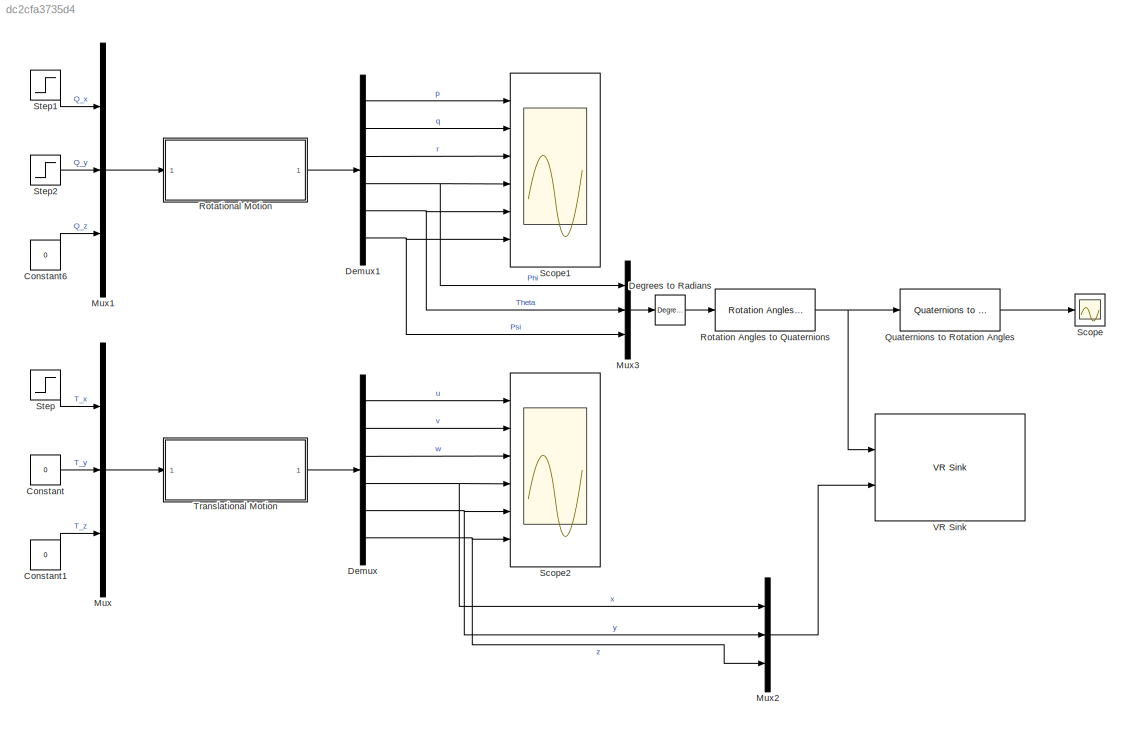
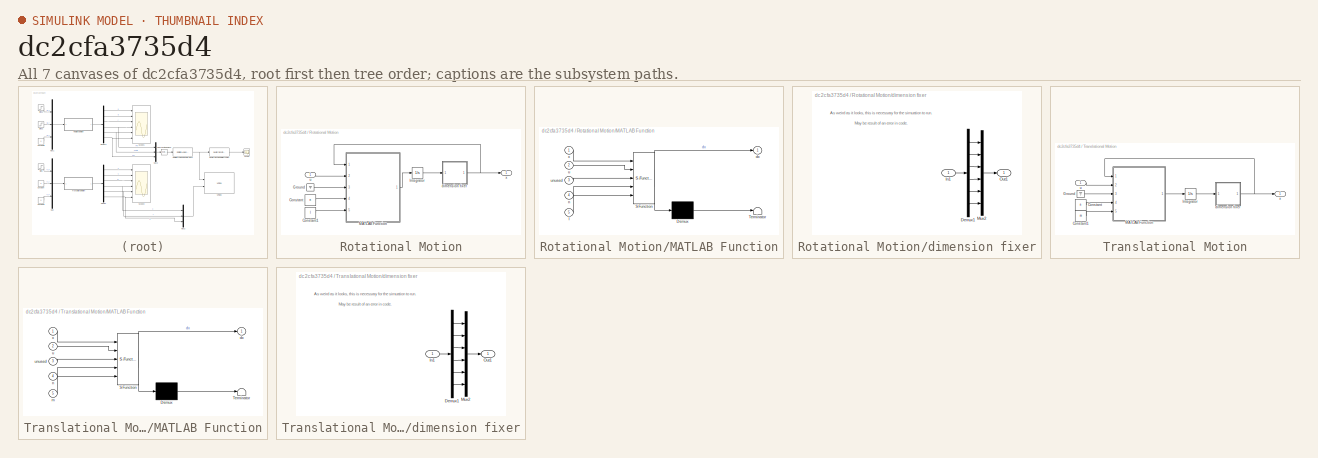
[diagram: thumbnail index - all 7 canvases of the model, root first then tree order]
MODEL slx_dc2cfa3735d4
KIND model
CONFIG AbsTol = auto
CONFIG EnableMultiTasking = off
CONFIG FixedStep = auto
CONFIG MaxStep = auto
CONFIG MinStep = auto
CONFIG RelTol = 1e-3
CONFIG SampleTimeConstraint = Unconstrained
CONFIG Solver = VariableStepAuto
CONFIG SolverName = VariableStepAuto
CONFIG StartTime = 0.0
CONFIG StopTime = 600
BLOCK [Constant] Constant
  Value = 0
BLOCK [Constant] Constant1
  Value = 0
BLOCK [Constant] Constant6
  Value = 0
BLOCK [Reference] Degrees to Radians  REF=simulink_extras/Transformations/Degrees to
Radians
  Ports = [1, 1]
  SourceBlock = simulink_extras/Transformations/Degrees to\nRadians
  SourceProductBaseCode = SL
  SourceProductName = Simulink
  SourceType = DegreesToRadians
BLOCK [Demux] Demux
  DisplayOption = bar
  Outputs = 6
  Ports = [1, 6]
BLOCK [Demux] Demux1
  DisplayOption = bar
  Outputs = 6
  Ports = [1, 6]
BLOCK [Mux] Mux
  DisplayOption = bar
  Inputs = 3
  Ports = [3, 1]
BLOCK [Mux] Mux1
  DisplayOption = bar
  Inputs = 3
  Ports = [3, 1]
BLOCK [Mux] Mux2
  DisplayOption = bar
  Inputs = 3
  Ports = [3, 1]
BLOCK [Mux] Mux3
  DisplayOption = bar
  Inputs = 3
  Ports = [3, 1]
BLOCK [Reference] Quaternions to Rotation Angles  REF=sharedtransform/Quaternions to Rotation Angles
  AttributesFormatString = Rotation Order: %<rotationOrder>
  Ports = [1, 1]
  SourceBlock = sharedtransform/Quaternions to Rotation Angles
  SourceProductBaseCode = AE
  SourceProductName = Aerospace Blockset
  SourceType = Quat2Ang
BLOCK [Reference] Rotation Angles to Quaternions  REF=sharedtransform/Rotation Angles to Quaternions
  AttributesFormatString = Rotation Order: %<rotationOrder>
  Ports = [1, 1]
  SourceBlock = sharedtransform/Rotation Angles to Quaternions
  SourceProductBaseCode = AE
  SourceProductName = Aerospace Blockset
  SourceType = Ang2Quat
BLOCK [SubSystem] Rotational Motion
  Ports = [1, 1]
  RequestExecContextInheritance = off
BLOCK [Constant] Rotational Motion/Constant
  Value = n
BLOCK [Constant] Rotational Motion/Constant1
  Value = I
BLOCK [Ground] Rotational Motion/Ground
BLOCK [Integrator] Rotational Motion/Integrator
  Ports = [1, 1]
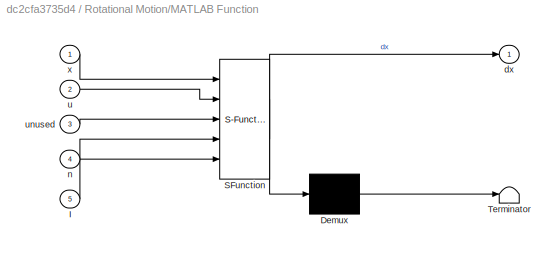
BLOCK [SubSystem] Rotational Motion/MATLAB Function
  ErrorFcn = Stateflow.Translate.translate
  PermitHierarchicalResolution = ExplicitOnly
  Ports = [5, 1]
  RequestExecContextInheritance = off
  SFBlockType = MATLAB Function
  TreatAsAtomicUnit = on
BLOCK [Demux] Rotational Motion/MATLAB Function/ Demux 
  Outputs = 1
  Ports = [1, 1]
BLOCK [S-Function] Rotational Motion/MATLAB Function/ SFunction 
  EnableBusSupport = on
  FunctionName = sf_sfun
  PortCounts = [5 2]
  Ports = [5, 2]
  SFcnIsStateOwnerBlock = off
  SFunctionDeploymentMode = off
  Tag = Stateflow S-Function 1
BLOCK [Terminator] Rotational Motion/MATLAB Function/ Terminator 
BLOCK [Inport] Rotational Motion/MATLAB Function/I
  IconDisplay = Port number
  Port = 5
BLOCK [Outport] Rotational Motion/MATLAB Function/dx
  IconDisplay = Port number
BLOCK [Inport] Rotational Motion/MATLAB Function/n
  IconDisplay = Port number
  Port = 4
BLOCK [Inport] Rotational Motion/MATLAB Function/u
  IconDisplay = Port number
  Port = 2
BLOCK [Inport] Rotational Motion/MATLAB Function/unused
  IconDisplay = Port number
  Port = 3
BLOCK [Inport] Rotational Motion/MATLAB Function/x
  IconDisplay = Port number
BLOCK [SubSystem] Rotational Motion/dimension fixer
  Ports = [1, 1]
  RequestExecContextInheritance = off
BLOCK [Demux] Rotational Motion/dimension fixer/Demux1
  DisplayOption = bar
  Outputs = 6
  Ports = [1, 6]
BLOCK [Inport] Rotational Motion/dimension fixer/In1
  IconDisplay = Port number
BLOCK [Mux] Rotational Motion/dimension fixer/Mux2
  DisplayOption = bar
  Inputs = 6
  Ports = [6, 1]
BLOCK [Outport] Rotational Motion/dimension fixer/Out1
  IconDisplay = Port number
BLOCK [Inport] Rotational Motion/u
  IconDisplay = Port number
BLOCK [Outport] Rotational Motion/x
  IconDisplay = Port number
BLOCK [Scope] Scope
  Floating = off
  NumInputPorts = 1
  Ports = [1]
  ScopeSpecificationString = Simulink.scopes.TimeScopeBlockCfg('CurrentConfiguration', extmgr.ConfigurationSet(extmgr.Configuration('Core','General UI',true),extmgr.Configuration('Core','Source UI',true),extmgr.Configuration('Sources','WiredSimulink',true,'DataLoggingVariableName','ScopeData1'),extmgr.Configuration('Visuals','Time Domain',true,'SerializedDisplays',{struct('MinYLimReal','-3.92623','MaxYLimReal','3.92691','YLab...<+1386ch>
BLOCK [Scope] Scope1
  Floating = off
  NumInputPorts = 6
  Ports = [6]
  ScopeSpecificationString = Simulink.scopes.TimeScopeBlockCfg('CurrentConfiguration', extmgr.ConfigurationSet(extmgr.Configuration('Core','General UI',true),extmgr.Configuration('Core','Source UI',true),extmgr.Configuration('Sources','WiredSimulink',true,'DataLoggingVariableName','ScopeData1'),extmgr.Configuration('Visuals','Time Domain',true,'SerializedDisplays',{struct('MinYLimReal','-4.46175','MaxYLimReal','40.15575','YLa...<+4754ch>
BLOCK [Scope] Scope2
  Floating = off
  NumInputPorts = 6
  Ports = [6]
  ScopeSpecificationString = Simulink.scopes.TimeScopeBlockCfg('CurrentConfiguration', extmgr.ConfigurationSet(extmgr.Configuration('Core','General UI',true),extmgr.Configuration('Core','Source UI',true),extmgr.Configuration('Sources','WiredSimulink',true,'DataLoggingVariableName','ScopeData1'),extmgr.Configuration('Visuals','Time Domain',true,'SerializedDisplays',{struct('MinYLimReal','-0.00744','MaxYLimReal','0.06694','YLab...<+4757ch>
BLOCK [Step] Step
  After = 0.01
  SampleTime = 0
  Time = 5
BLOCK [Step] Step1
  SampleTime = 0
  Time = 5
BLOCK [Step] Step2
  After = 0
  SampleTime = 0
  Time = 15
BLOCK [SubSystem] Translational Motion
  Ports = [1, 1]
  RequestExecContextInheritance = off
BLOCK [Constant] Translational Motion/Constant
  Value = n
BLOCK [Constant] Translational Motion/Constant1
  Value = m
BLOCK [Ground] Translational Motion/Ground
BLOCK [Integrator] Translational Motion/Integrator
  Ports = [1, 1]
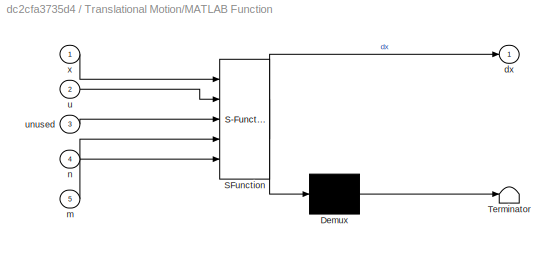
BLOCK [SubSystem] Translational Motion/MATLAB Function
  ErrorFcn = Stateflow.Translate.translate
  PermitHierarchicalResolution = ExplicitOnly
  Ports = [5, 1]
  RequestExecContextInheritance = off
  SFBlockType = MATLAB Function
  TreatAsAtomicUnit = on
BLOCK [Demux] Translational Motion/MATLAB Function/ Demux 
  Outputs = 1
  Ports = [1, 1]
BLOCK [S-Function] Translational Motion/MATLAB Function/ SFunction 
  EnableBusSupport = on
  FunctionName = sf_sfun
  PortCounts = [5 2]
  Ports = [5, 2]
  SFcnIsStateOwnerBlock = off
  SFunctionDeploymentMode = off
  Tag = Stateflow S-Function 2
BLOCK [Terminator] Translational Motion/MATLAB Function/ Terminator 
BLOCK [Outport] Translational Motion/MATLAB Function/dx
  IconDisplay = Port number
BLOCK [Inport] Translational Motion/MATLAB Function/m
  IconDisplay = Port number
  Port = 5
BLOCK [Inport] Translational Motion/MATLAB Function/n
  IconDisplay = Port number
  Port = 4
BLOCK [Inport] Translational Motion/MATLAB Function/u
  IconDisplay = Port number
  Port = 2
BLOCK [Inport] Translational Motion/MATLAB Function/unused
  IconDisplay = Port number
  Port = 3
BLOCK [Inport] Translational Motion/MATLAB Function/x
  IconDisplay = Port number
BLOCK [SubSystem] Translational Motion/dimension fixer
  Ports = [1, 1]
  RequestExecContextInheritance = off
BLOCK [Demux] Translational Motion/dimension fixer/Demux1
  DisplayOption = bar
  Outputs = 6
  Ports = [1, 6]
BLOCK [Inport] Translational Motion/dimension fixer/In1
  IconDisplay = Port number
BLOCK [Mux] Translational Motion/dimension fixer/Mux2
  DisplayOption = bar
  Inputs = 6
  Ports = [6, 1]
BLOCK [Outport] Translational Motion/dimension fixer/Out1
  IconDisplay = Port number
BLOCK [Inport] Translational Motion/u
  IconDisplay = Port number
BLOCK [Outport] Translational Motion/x
  IconDisplay = Port number
BLOCK [Reference] VR Sink  REF=vrlib/VR Sink
  InstantiateOnLoad = on
  Ports = [2]
  SourceBlock = vrlib/VR Sink
  SourceProductBaseCode = SL
  SourceProductName = Simulink
  SourceType = Virtual Reality Sink
ANNOTATION Rotational Motion/dimension fixer: As weird as it looks, this is necessary for the simuation to run. May be result of an error in code.
ANNOTATION Translational Motion/dimension fixer: As weird as it looks, this is necessary for the simuation to run. May be result of an error in code.
LINE Constant1:1 -> Mux:3
LINE Constant6:1 -> Mux1:3
LINE Constant:1 -> Mux:2
LINE Degrees to Radians:1 -> Rotation Angles to Quaternions:1
LINE Demux1:1 -> Scope1:1
LINE Demux1:2 -> Scope1:2
LINE Demux1:3 -> Scope1:3
NET Demux1:4 -> Mux3:1, Scope1:4
NET Demux1:5 -> Mux3:2, Scope1:5
NET Demux1:6 -> Mux3:3, Scope1:6
LINE Demux:1 -> Scope2:1
LINE Demux:2 -> Scope2:2
LINE Demux:3 -> Scope2:3
NET Demux:4 -> Mux2:1, Scope2:4
NET Demux:5 -> Mux2:2, Scope2:5
NET Demux:6 -> Mux2:3, Scope2:6
LINE Mux1:1 -> Rotational Motion:1
LINE Mux2:1 -> VR Sink:2
LINE Mux3:1 -> Degrees to Radians:1
LINE Mux:1 -> Translational Motion:1
LINE Quaternions to Rotation Angles:1 -> Scope:1
NET Rotation Angles to Quaternions:1 -> Quaternions to Rotation Angles:1, VR Sink:1
LINE Rotational Motion/Constant1:1 -> Rotational Motion/MATLAB Function:5
LINE Rotational Motion/Constant:1 -> Rotational Motion/MATLAB Function:4
LINE Rotational Motion/Ground:1 -> Rotational Motion/MATLAB Function:3
LINE Rotational Motion/Integrator:1 -> Rotational Motion/dimension fixer:1
LINE Rotational Motion/MATLAB Function:1 -> Rotational Motion/Integrator:1
LINE Rotational Motion/dimension fixer/Demux1:1 -> Rotational Motion/dimension fixer/Mux2:1
LINE Rotational Motion/dimension fixer/Demux1:2 -> Rotational Motion/dimension fixer/Mux2:2
LINE Rotational Motion/dimension fixer/Demux1:3 -> Rotational Motion/dimension fixer/Mux2:3
LINE Rotational Motion/dimension fixer/Demux1:4 -> Rotational Motion/dimension fixer/Mux2:4
LINE Rotational Motion/dimension fixer/Demux1:5 -> Rotational Motion/dimension fixer/Mux2:5
LINE Rotational Motion/dimension fixer/Demux1:6 -> Rotational Motion/dimension fixer/Mux2:6
LINE Rotational Motion/dimension fixer/In1:1 -> Rotational Motion/dimension fixer/Demux1:1
LINE Rotational Motion/dimension fixer/Mux2:1 -> Rotational Motion/dimension fixer/Out1:1
NET Rotational Motion/dimension fixer:1 -> Rotational Motion/MATLAB Function:1, Rotational Motion/x:1
LINE Rotational Motion/u:1 -> Rotational Motion/MATLAB Function:2
LINE Rotational Motion:1 -> Demux1:1
LINE Step1:1 -> Mux1:1
LINE Step2:1 -> Mux1:2
LINE Step:1 -> Mux:1
LINE Translational Motion/Constant1:1 -> Translational Motion/MATLAB Function:5
LINE Translational Motion/Constant:1 -> Translational Motion/MATLAB Function:4
LINE Translational Motion/Ground:1 -> Translational Motion/MATLAB Function:3
LINE Translational Motion/Integrator:1 -> Translational Motion/dimension fixer:1
LINE Translational Motion/MATLAB Function:1 -> Translational Motion/Integrator:1
LINE Translational Motion/dimension fixer/Demux1:1 -> Translational Motion/dimension fixer/Mux2:1
LINE Translational Motion/dimension fixer/Demux1:2 -> Translational Motion/dimension fixer/Mux2:2
LINE Translational Motion/dimension fixer/Demux1:3 -> Translational Motion/dimension fixer/Mux2:3
LINE Translational Motion/dimension fixer/Demux1:4 -> Translational Motion/dimension fixer/Mux2:4
LINE Translational Motion/dimension fixer/Demux1:5 -> Translational Motion/dimension fixer/Mux2:5
LINE Translational Motion/dimension fixer/Demux1:6 -> Translational Motion/dimension fixer/Mux2:6
LINE Translational Motion/dimension fixer/In1:1 -> Translational Motion/dimension fixer/Demux1:1
LINE Translational Motion/dimension fixer/Mux2:1 -> Translational Motion/dimension fixer/Out1:1
NET Translational Motion/dimension fixer:1 -> Translational Motion/MATLAB Function:1, Translational Motion/x:1
LINE Translational Motion/u:1 -> Translational Motion/MATLAB Function:2
LINE Translational Motion:1 -> Demux:1
note: NET lines group one-source signal fan-out (src -> all destinations, sorted); 1:1 wires keep LINE
CHART Rotational Motion/MATLAB Function states=1 transitions=1
  STATE_LABEL 'eML_blk_kernel()'
  STATE_LABEL 'SCRIPT:\nfunction dx = translational_motion(x, u, ~, n, I)\n\n        p = x(1);\n        q = x(2);\n        r = x(3);\n      phi = x(4);\n    theta = x(5);\n      psi = x(6);\n\n    G = [ 1  0          -sin(theta)           ;\n          0  cos(theta)  cos(theta)*sin(phi)  ;\n          0 -sin(theta)  cos(theta)*cos(phi) ];\n\n    F = [ sin(psi)*cos(theta)                               ;\n          sin(psi)*sin(th...<+527ch>'
CHART Translational Motion/MATLAB Function states=1 transitions=1
  STATE_LABEL 'eML_blk_kernel()'
  STATE_LABEL 'SCRIPT:\nfunction dx = translational_motion(x, u, ~, n, m)\n\n    A = [  0   0   n  -n^2 0   0     ;\n           0   0   0   0  -n^2 0     ;\n          -n   0   0   0   0   2*n^2 ;\n           1   0   0   0   0   n     ;\n           0   1   0   0   0   0     ;\n           0   0   1  -n   0   0    ];\n\n    B = [  1/m 0   0   ;\n           0   1/m 0   ;\n           0   0   1/m ;\n           0   0   0   ;\n      ...<+71ch>'
